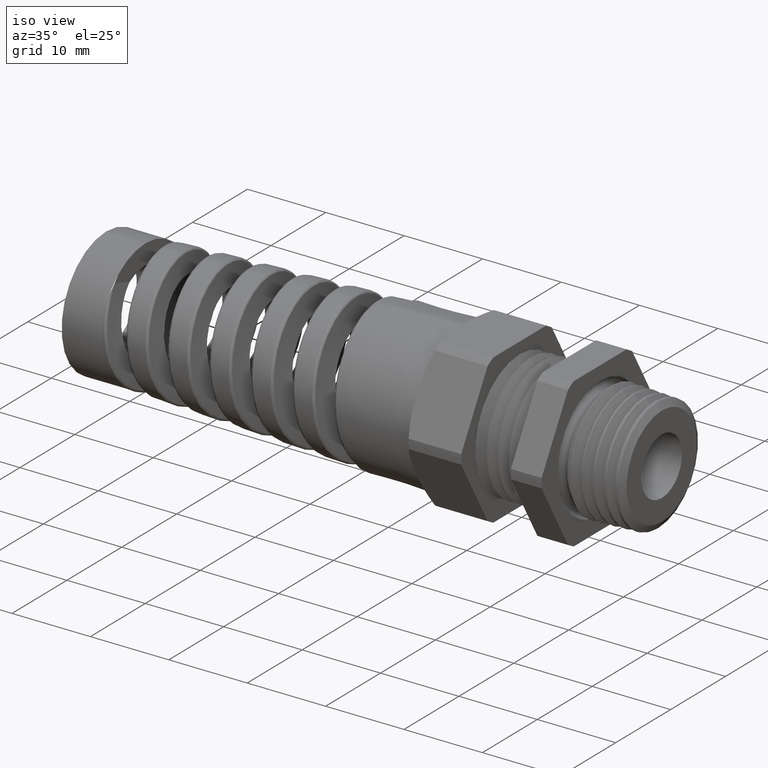
[diagram: clean part render]
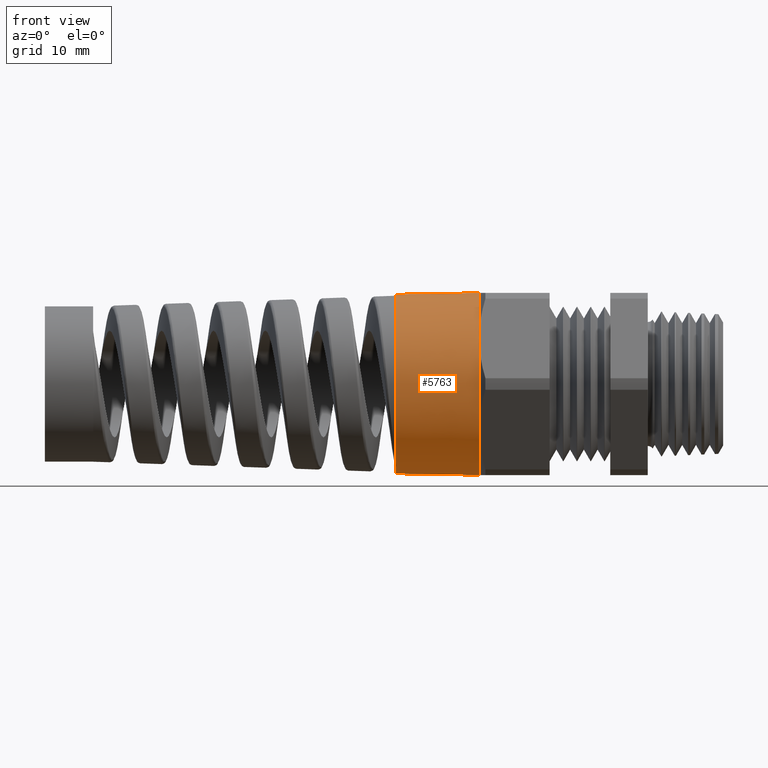
[diagram: tour spotlight — one face highlighted and labeled with its STEP entity id]
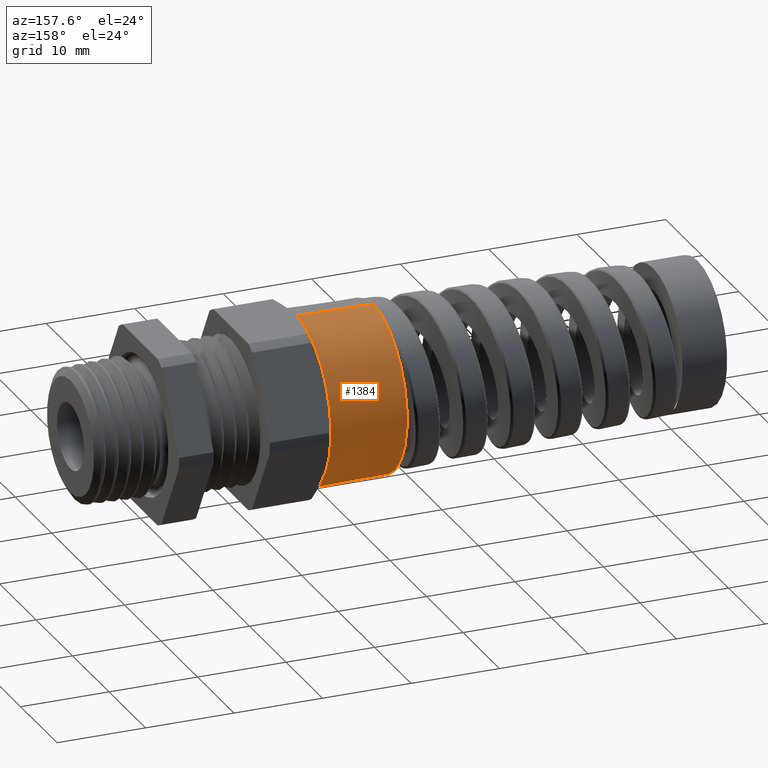
[diagram: tour spotlight — one face highlighted and labeled with its STEP entity id]
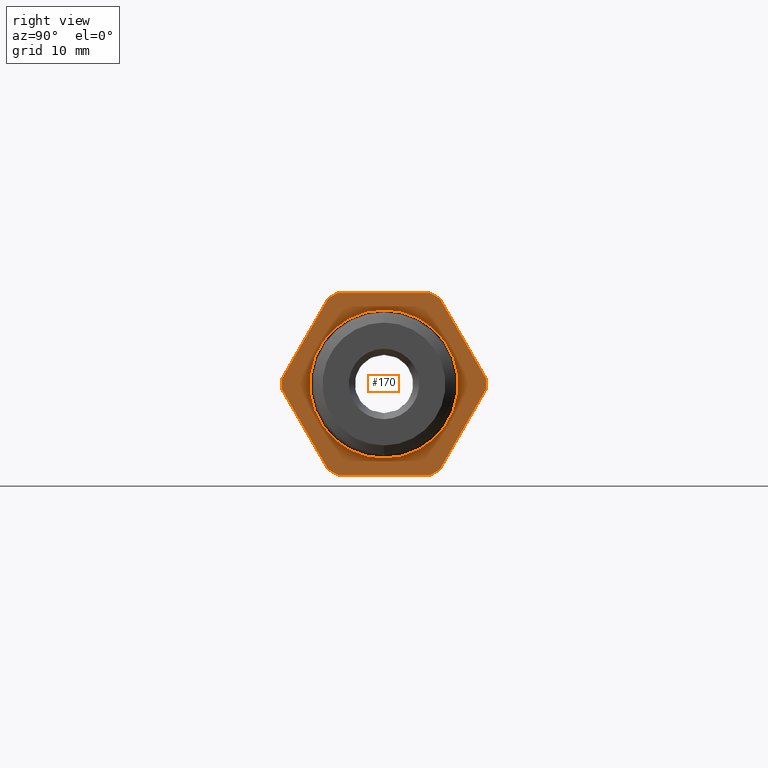
[diagram: tour spotlight — one face highlighted and labeled with its STEP entity id]
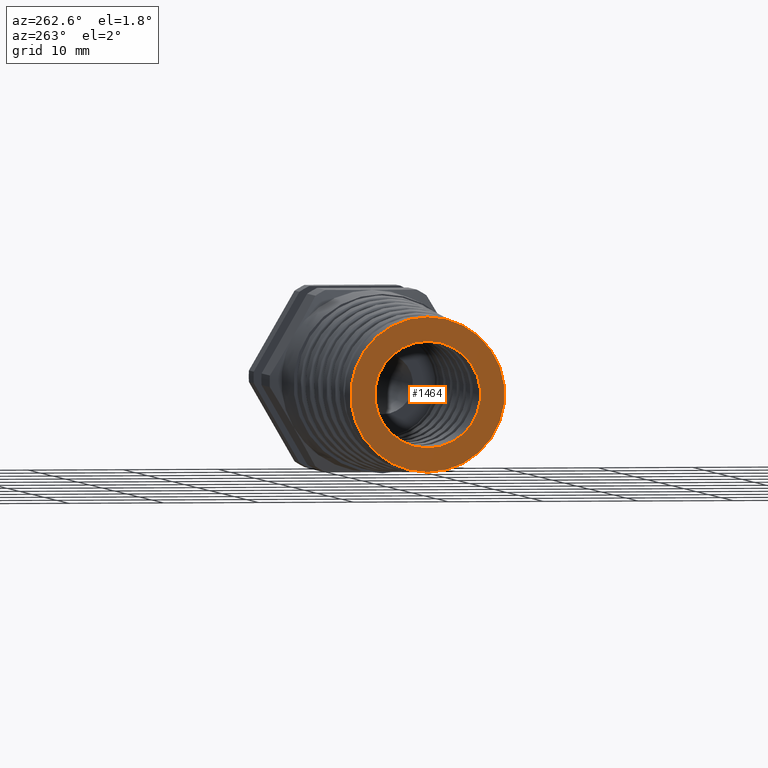
[diagram: tour spotlight — one face highlighted and labeled with its STEP entity id]
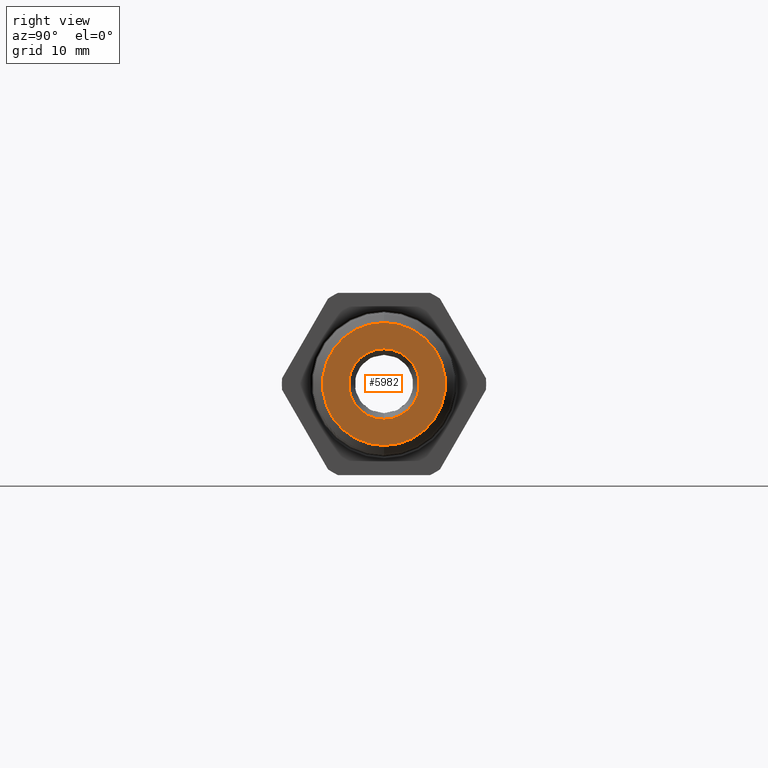
[diagram: tour spotlight — one face highlighted and labeled with its STEP entity id]
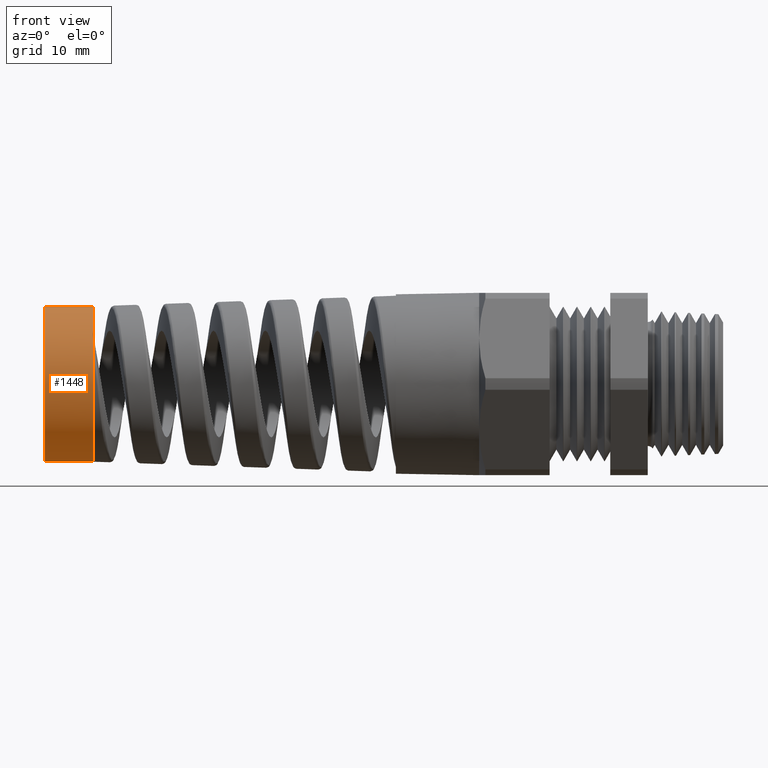
[diagram: tour spotlight — one face highlighted and labeled with its STEP entity id]
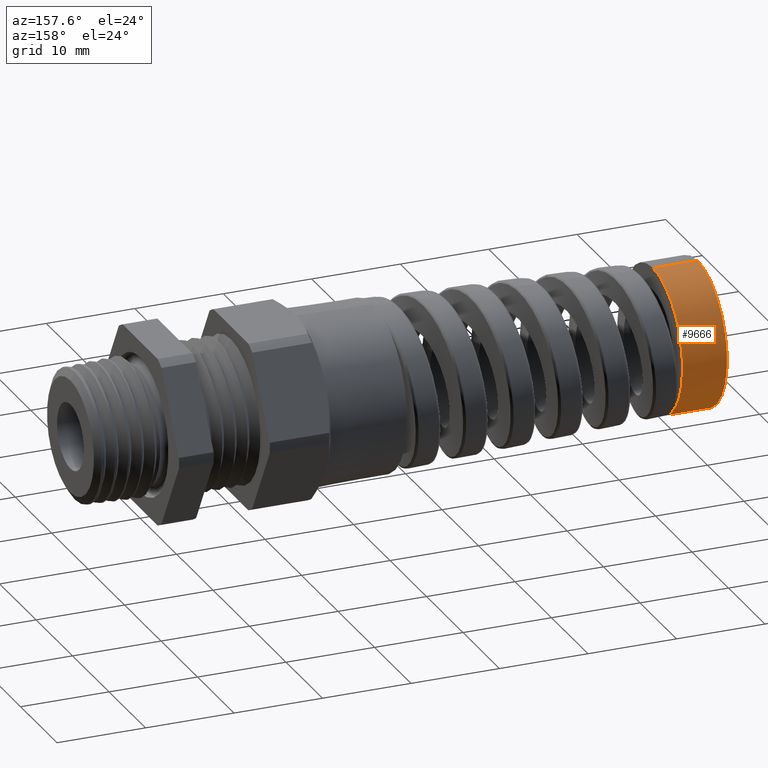
[diagram: tour spotlight — one face highlighted and labeled with its STEP entity id]
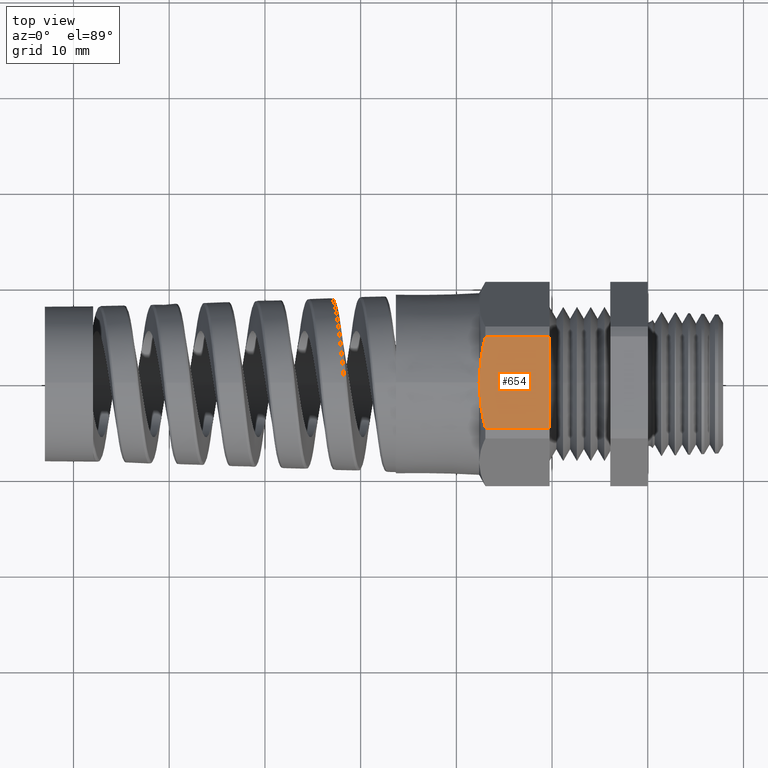
[diagram: tour spotlight — one face highlighted and labeled with its STEP entity id]
A machine part: a face-by-face anatomy tour. The part has 144 B-rep faces; the first image is the clean iso view, then the 8 largest visible faces are spotlighted one at a time (largest first), each with its STEP entity span.

Face 1 — front view, entity #5763. In plain terms, the highlighted conical surface has half-angle 1 deg.
Definition (entity closure, byte-faithful):
#363 = VERTEX_POINT ( 'NONE', #6737 ) ;
#370 = ORIENTED_EDGE ( 'NONE', *, *, #5750, .T. ) ;
#392 = EDGE_CURVE ( 'NONE', #394, #363, #6809, .T. ) ;
#393 = ORIENTED_EDGE ( 'NONE', *, *, #392, .T. ) ;
#394 = VERTEX_POINT ( 'NONE', #6804 ) ;
#504 = ORIENTED_EDGE ( 'NONE', *, *, #506, .T. ) ;
#505 = VERTEX_POINT ( 'NONE', #6850 ) ;
#506 = EDGE_CURVE ( 'NONE', #505, #394, #6849, .T. ) ;
#3986 = CARTESIAN_POINT ( 'NONE',  ( -0.6937499999999999800, 0.0000000000000000000, 0.3749999999999999400 ) ) ;
#4025 = CIRCLE ( 'NONE', #4051, 0.3690261785789666900 ) ;
#4032 = CARTESIAN_POINT ( 'NONE',  ( -1.035990000000000000, 0.0000000000000000000, 0.3690261785789666900 ) ) ;
#4033 = CARTESIAN_POINT ( 'NONE',  ( -1.035990000000000000, -4.555846390392842600E-017, -0.3690261785789666900 ) ) ;
#4034 = DIRECTION ( 'NONE',  ( 0.0000000000000000000, 0.0000000000000000000, 1.000000000000000000 ) ) ;
#4035 = DIRECTION ( 'NONE',  ( -1.000000000000000000, 0.0000000000000000000, 0.0000000000000000000 ) ) ;
#4036 = CARTESIAN_POINT ( 'NONE',  ( -0.6937499999999999800, 0.0000000000000000000, 0.0000000000000000000 ) ) ;
#4037 = AXIS2_PLACEMENT_3D ( 'NONE', #4036, #4035, #4034 ) ;
#4038 = CIRCLE ( 'NONE', #4037, 0.3749999999999999400 ) ;
#4039 = DIRECTION ( 'NONE',  ( 0.9998476951563912700, -2.137303368083796300E-018, -0.01745240643728355000 ) ) ;
#4040 = VECTOR ( 'NONE', #4039, 39.37007874015748100 ) ;
#4041 = CARTESIAN_POINT ( 'NONE',  ( -0.6937499999999999800, -4.592425496802573600E-017, -0.3749999999999999400 ) ) ;
#4042 = LINE ( 'NONE', #4041, #4040 ) ;
#4043 = DIRECTION ( 'NONE',  ( 0.9998476951563912700, 0.0000000000000000000, 0.01745240643728355000 ) ) ;
#4044 = VECTOR ( 'NONE', #4043, 39.37007874015748100 ) ;
#4045 = CARTESIAN_POINT ( 'NONE',  ( -0.6937499999999999800, 0.0000000000000000000, 0.3749999999999999400 ) ) ;
#4046 = LINE ( 'NONE', #4045, #4044 ) ;
#4047 = FACE_OUTER_BOUND ( 'NONE', #5759, .T. ) ;
#4048 = DIRECTION ( 'NONE',  ( 0.0000000000000000000, 0.0000000000000000000, 1.000000000000000000 ) ) ;
#4049 = DIRECTION ( 'NONE',  ( -1.000000000000000000, 0.0000000000000000000, 0.0000000000000000000 ) ) ;
#4050 = CARTESIAN_POINT ( 'NONE',  ( -1.035990000000000000, 0.0000000000000000000, 0.0000000000000000000 ) ) ;
#4051 = AXIS2_PLACEMENT_3D ( 'NONE', #4050, #4049, #4048 ) ;
#4116 = DIRECTION ( 'NONE',  ( 0.0000000000000000000, 0.0000000000000000000, 1.000000000000000000 ) ) ;
#4117 = DIRECTION ( 'NONE',  ( 1.000000000000000000, 0.0000000000000000000, 0.0000000000000000000 ) ) ;
#4118 = CARTESIAN_POINT ( 'NONE',  ( -0.6937499999999999800, 0.0000000000000000000, 0.0000000000000000000 ) ) ;
#4119 = AXIS2_PLACEMENT_3D ( 'NONE', #4118, #4117, #4116 ) ;
#4120 = CONICAL_SURFACE ( 'NONE', #4119, 0.3749999999999999400, 0.01745329251994333400 ) ;
#5744 = ORIENTED_EDGE ( 'NONE', *, *, #5748, .F. ) ;
#5746 = VERTEX_POINT ( 'NONE', #3986 ) ;
#5748 = EDGE_CURVE ( 'NONE', #5753, #5746, #4046, .T. ) ;
#5749 = EDGE_CURVE ( 'NONE', #5751, #505, #4042, .T. ) ;
#5750 = EDGE_CURVE ( 'NONE', #363, #5746, #4038, .T. ) ;
#5751 = VERTEX_POINT ( 'NONE', #4033 ) ;
#5752 = ORIENTED_EDGE ( 'NONE', *, *, #5749, .T. ) ;
#5753 = VERTEX_POINT ( 'NONE', #4032 ) ;
#5756 = ORIENTED_EDGE ( 'NONE', *, *, #5761, .F. ) ;
#5759 = EDGE_LOOP ( 'NONE', ( #5756, #5752, #504, #393, #370, #5744 ) ) ;
#5761 = EDGE_CURVE ( 'NONE', #5751, #5753, #4025, .T. ) ;
#5763 = ADVANCED_FACE ( 'NONE', ( #4047 ), #4120, .T. ) ;
#6737 = CARTESIAN_POINT ( 'NONE',  ( -0.6937499999999999800, -0.3247595264191645600, 0.1874999999999999700 ) ) ;
#6804 = CARTESIAN_POINT ( 'NONE',  ( -0.6937499999999999800, -0.3247595264191645600, -0.1874999999999998900 ) ) ;
#6805 = DIRECTION ( 'NONE',  ( 0.0000000000000000000, 0.0000000000000000000, 1.000000000000000000 ) ) ;
#6806 = DIRECTION ( 'NONE',  ( -1.000000000000000000, 0.0000000000000000000, 0.0000000000000000000 ) ) ;
#6807 = CARTESIAN_POINT ( 'NONE',  ( -0.6937499999999999800, 0.0000000000000000000, 0.0000000000000000000 ) ) ;
#6808 = AXIS2_PLACEMENT_3D ( 'NONE', #6807, #6806, #6805 ) ;
#6809 = CIRCLE ( 'NONE', #6808, 0.3749999999999999400 ) ;
#6845 = DIRECTION ( 'NONE',  ( 0.0000000000000000000, 0.0000000000000000000, 1.000000000000000000 ) ) ;
#6846 = DIRECTION ( 'NONE',  ( -1.000000000000000000, 0.0000000000000000000, 0.0000000000000000000 ) ) ;
#6847 = CARTESIAN_POINT ( 'NONE',  ( -0.6937499999999999800, 0.0000000000000000000, 0.0000000000000000000 ) ) ;
#6848 = AXIS2_PLACEMENT_3D ( 'NONE', #6847, #6846, #6845 ) ;
#6849 = CIRCLE ( 'NONE', #6848, 0.3749999999999999400 ) ;
#6850 = CARTESIAN_POINT ( 'NONE',  ( -0.6937499999999999800, 0.0000000000000000000, -0.3749999999999999400 ) ) ;

Face 2 — auxiliary view, entity #1384. In plain terms, the highlighted conical surface has half-angle 1 deg.
Definition (entity closure, byte-faithful):
#505 = VERTEX_POINT ( 'NONE', #6850 ) ;
#606 = VERTEX_POINT ( 'NONE', #7008 ) ;
#685 = VERTEX_POINT ( 'NONE', #7217 ) ;
#1345 = EDGE_CURVE ( 'NONE', #606, #505, #2489, .T. ) ;
#1367 = EDGE_CURVE ( 'NONE', #5746, #685, #2499, .T. ) ;
#1384 = ADVANCED_FACE ( 'NONE', ( #2621 ), #2618, .T. ) ;
#1385 = EDGE_LOOP ( 'NONE', ( #1386, #1387, #1388, #1389, #1390, #1391 ) ) ;
#1386 = ORIENTED_EDGE ( 'NONE', *, *, #5749, .F. ) ;
#1387 = ORIENTED_EDGE ( 'NONE', *, *, #9595, .F. ) ;
#1388 = ORIENTED_EDGE ( 'NONE', *, *, #5748, .T. ) ;
#1389 = ORIENTED_EDGE ( 'NONE', *, *, #1367, .T. ) ;
#1390 = ORIENTED_EDGE ( 'NONE', *, *, #10488, .T. ) ;
#1391 = ORIENTED_EDGE ( 'NONE', *, *, #1345, .T. ) ;
#2482 = DIRECTION ( 'NONE',  ( 0.0000000000000000000, 0.0000000000000000000, 1.000000000000000000 ) ) ;
#2483 = DIRECTION ( 'NONE',  ( -1.000000000000000000, 0.0000000000000000000, 0.0000000000000000000 ) ) ;
#2484 = CARTESIAN_POINT ( 'NONE',  ( -0.6937499999999999800, 0.0000000000000000000, 0.0000000000000000000 ) ) ;
#2485 = AXIS2_PLACEMENT_3D ( 'NONE', #2484, #2483, #2482 ) ;
#2489 = CIRCLE ( 'NONE', #2485, 0.3749999999999999400 ) ;
#2496 = DIRECTION ( 'NONE',  ( 0.0000000000000000000, 0.0000000000000000000, 1.000000000000000000 ) ) ;
#2497 = DIRECTION ( 'NONE',  ( -1.000000000000000000, 0.0000000000000000000, 0.0000000000000000000 ) ) ;
#2498 = AXIS2_PLACEMENT_3D ( 'NONE', #2504, #2497, #2496 ) ;
#2499 = CIRCLE ( 'NONE', #2498, 0.3749999999999999400 ) ;
#2504 = CARTESIAN_POINT ( 'NONE',  ( -0.6937499999999999800, 0.0000000000000000000, 0.0000000000000000000 ) ) ;
#2617 = CARTESIAN_POINT ( 'NONE',  ( -0.6937499999999999800, 0.0000000000000000000, 0.0000000000000000000 ) ) ;
#2618 = CONICAL_SURFACE ( 'NONE', #2663, 0.3749999999999999400, 0.01745329251994333400 ) ;
#2619 = DIRECTION ( 'NONE',  ( 1.000000000000000000, 0.0000000000000000000, 0.0000000000000000000 ) ) ;
#2621 = FACE_OUTER_BOUND ( 'NONE', #1385, .T. ) ;
#2662 = DIRECTION ( 'NONE',  ( 0.0000000000000000000, 0.0000000000000000000, 1.000000000000000000 ) ) ;
#2663 = AXIS2_PLACEMENT_3D ( 'NONE', #2617, #2619, #2662 ) ;
#3986 = CARTESIAN_POINT ( 'NONE',  ( -0.6937499999999999800, 0.0000000000000000000, 0.3749999999999999400 ) ) ;
#4032 = CARTESIAN_POINT ( 'NONE',  ( -1.035990000000000000, 0.0000000000000000000, 0.3690261785789666900 ) ) ;
#4033 = CARTESIAN_POINT ( 'NONE',  ( -1.035990000000000000, -4.555846390392842600E-017, -0.3690261785789666900 ) ) ;
#4039 = DIRECTION ( 'NONE',  ( 0.9998476951563912700, -2.137303368083796300E-018, -0.01745240643728355000 ) ) ;
#4040 = VECTOR ( 'NONE', #4039, 39.37007874015748100 ) ;
#4041 = CARTESIAN_POINT ( 'NONE',  ( -0.6937499999999999800, -4.592425496802573600E-017, -0.3749999999999999400 ) ) ;
#4042 = LINE ( 'NONE', #4041, #4040 ) ;
#4043 = DIRECTION ( 'NONE',  ( 0.9998476951563912700, 0.0000000000000000000, 0.01745240643728355000 ) ) ;
#4044 = VECTOR ( 'NONE', #4043, 39.37007874015748100 ) ;
#4045 = CARTESIAN_POINT ( 'NONE',  ( -0.6937499999999999800, 0.0000000000000000000, 0.3749999999999999400 ) ) ;
#4046 = LINE ( 'NONE', #4045, #4044 ) ;
#4781 = CIRCLE ( 'NONE', #4847, 0.3690261785789666900 ) ;
#4786 = CARTESIAN_POINT ( 'NONE',  ( -1.035990000000000000, 0.0000000000000000000, 0.0000000000000000000 ) ) ;
#4845 = DIRECTION ( 'NONE',  ( 0.0000000000000000000, 0.0000000000000000000, 1.000000000000000000 ) ) ;
#4846 = DIRECTION ( 'NONE',  ( -1.000000000000000000, 0.0000000000000000000, 0.0000000000000000000 ) ) ;
#4847 = AXIS2_PLACEMENT_3D ( 'NONE', #4786, #4846, #4845 ) ;
#5532 = CARTESIAN_POINT ( 'NONE',  ( -0.6937499999999999800, 0.0000000000000000000, 0.0000000000000000000 ) ) ;
#5595 = DIRECTION ( 'NONE',  ( 0.0000000000000000000, 0.0000000000000000000, 1.000000000000000000 ) ) ;
#5596 = DIRECTION ( 'NONE',  ( -1.000000000000000000, 0.0000000000000000000, 0.0000000000000000000 ) ) ;
#5597 = AXIS2_PLACEMENT_3D ( 'NONE', #5532, #5596, #5595 ) ;
#5598 = CIRCLE ( 'NONE', #5597, 0.3749999999999999400 ) ;
#5746 = VERTEX_POINT ( 'NONE', #3986 ) ;
#5748 = EDGE_CURVE ( 'NONE', #5753, #5746, #4046, .T. ) ;
#5749 = EDGE_CURVE ( 'NONE', #5751, #505, #4042, .T. ) ;
#5751 = VERTEX_POINT ( 'NONE', #4033 ) ;
#5753 = VERTEX_POINT ( 'NONE', #4032 ) ;
#6850 = CARTESIAN_POINT ( 'NONE',  ( -0.6937499999999999800, 0.0000000000000000000, -0.3749999999999999400 ) ) ;
#7008 = CARTESIAN_POINT ( 'NONE',  ( -0.6937499999999999800, 0.3247595264191644500, -0.1875000000000000300 ) ) ;
#7217 = CARTESIAN_POINT ( 'NONE',  ( -0.6937499999999999800, 0.3247595264191644500, 0.1875000000000000300 ) ) ;
#9595 = EDGE_CURVE ( 'NONE', #5753, #5751, #4781, .T. ) ;
#10488 = EDGE_CURVE ( 'NONE', #685, #606, #5598, .T. ) ;

Face 3 — right view, entity #170. In plain terms, the highlighted planar face has unit normal (-1, 0, 0).
Definition (entity closure, byte-faithful):
#170 = ADVANCED_FACE ( 'NONE', ( #6447, #6446 ), #6445, .F. ) ;
#171 = EDGE_LOOP ( 'NONE', ( #179, #200, #6156, #6154, #5827, #6011, #6016, #6012, #5994, #6005, #5996, #5998 ) ) ;
#173 = EDGE_CURVE ( 'NONE', #191, #188, #6436, .T. ) ;
#176 = EDGE_CURVE ( 'NONE', #193, #188, #6425, .T. ) ;
#179 = ORIENTED_EDGE ( 'NONE', *, *, #176, .T. ) ;
#188 = VERTEX_POINT ( 'NONE', #6465 ) ;
#191 = VERTEX_POINT ( 'NONE', #6458 ) ;
#193 = VERTEX_POINT ( 'NONE', #6453 ) ;
#200 = ORIENTED_EDGE ( 'NONE', *, *, #173, .F. ) ;
#3880 = DIRECTION ( 'NONE',  ( 0.0000000000000000000, 0.0000000000000000000, 1.000000000000000000 ) ) ;
#3881 = DIRECTION ( 'NONE',  ( 1.000000000000000000, 0.0000000000000000000, 0.0000000000000000000 ) ) ;
#3882 = CARTESIAN_POINT ( 'NONE',  ( 0.0000000000000000000, 0.0000000000000000000, 0.0000000000000000000 ) ) ;
#3883 = AXIS2_PLACEMENT_3D ( 'NONE', #3882, #3881, #3880 ) ;
#3884 = CIRCLE ( 'NONE', #3883, 0.3049999999999998300 ) ;
#3890 = CARTESIAN_POINT ( 'NONE',  ( 0.0000000000000000000, 3.735172737399425200E-017, 0.3049999999999998300 ) ) ;
#3900 = CARTESIAN_POINT ( 'NONE',  ( 0.0000000000000000000, 0.0000000000000000000, -0.3049999999999998300 ) ) ;
#4251 = CARTESIAN_POINT ( 'NONE',  ( 0.0000000000000000000, 0.1891428031937775500, -0.3749999999999999400 ) ) ;
#4252 = CARTESIAN_POINT ( 'NONE',  ( 0.0000000000000000000, 0.2301881248222757100, -0.3513024725088117500 ) ) ;
#4417 = CARTESIAN_POINT ( 'NONE',  ( 0.0000000000000000000, 0.1891428031937775500, 0.3749999999999999400 ) ) ;
#4450 = LINE ( 'NONE', #4514, #4513 ) ;
#4451 = CARTESIAN_POINT ( 'NONE',  ( 0.0000000000000000000, -0.2301881248222755500, 0.3513024725088118000 ) ) ;
#4452 = CARTESIAN_POINT ( 'NONE',  ( 0.0000000000000000000, -0.4193309280160532100, 0.02369752749118811000 ) ) ;
#4464 = DIRECTION ( 'NONE',  ( 0.0000000000000000000, 0.0000000000000000000, 1.000000000000000000 ) ) ;
#4465 = DIRECTION ( 'NONE',  ( -1.000000000000000000, 0.0000000000000000000, 0.0000000000000000000 ) ) ;
#4466 = CARTESIAN_POINT ( 'NONE',  ( 0.0000000000000000000, 0.0000000000000000000, 0.0000000000000000000 ) ) ;
#4467 = AXIS2_PLACEMENT_3D ( 'NONE', #4466, #4465, #4464 ) ;
#4468 = CIRCLE ( 'NONE', #4467, 0.4200000000000000400 ) ;
#4469 = DIRECTION ( 'NONE',  ( 0.0000000000000000000, -0.5000000000000000000, -0.8660254037844386000 ) ) ;
#4470 = VECTOR ( 'NONE', #4469, 39.37007874015748900 ) ;
#4471 = CARTESIAN_POINT ( 'NONE',  ( 0.0000000000000000000, -0.2301881248222756000, 0.3513024725088117500 ) ) ;
#4472 = LINE ( 'NONE', #4471, #4470 ) ;
#4473 = DIRECTION ( 'NONE',  ( 0.0000000000000000000, 0.0000000000000000000, 1.000000000000000000 ) ) ;
#4474 = DIRECTION ( 'NONE',  ( -1.000000000000000000, 0.0000000000000000000, 0.0000000000000000000 ) ) ;
#4475 = CARTESIAN_POINT ( 'NONE',  ( 0.0000000000000000000, 0.0000000000000000000, 0.0000000000000000000 ) ) ;
#4476 = AXIS2_PLACEMENT_3D ( 'NONE', #4475, #4474, #4473 ) ;
#4477 = CIRCLE ( 'NONE', #4476, 0.4200000000000000400 ) ;
#4478 = CARTESIAN_POINT ( 'NONE',  ( 0.0000000000000000000, -0.1891428031937775500, 0.3749999999999999400 ) ) ;
#4479 = DIRECTION ( 'NONE',  ( 0.0000000000000000000, -1.000000000000000000, 0.0000000000000000000 ) ) ;
#4480 = VECTOR ( 'NONE', #4479, 39.37007874015748100 ) ;
#4481 = CARTESIAN_POINT ( 'NONE',  ( 0.0000000000000000000, 0.1891428031937775500, 0.3749999999999999400 ) ) ;
#4482 = LINE ( 'NONE', #4481, #4480 ) ;
#4489 = DIRECTION ( 'NONE',  ( 0.0000000000000000000, 0.0000000000000000000, 1.000000000000000000 ) ) ;
#4490 = DIRECTION ( 'NONE',  ( 1.000000000000000000, 0.0000000000000000000, 0.0000000000000000000 ) ) ;
#4491 = CARTESIAN_POINT ( 'NONE',  ( 0.0000000000000000000, 0.0000000000000000000, 0.0000000000000000000 ) ) ;
#4492 = AXIS2_PLACEMENT_3D ( 'NONE', #4491, #4490, #4489 ) ;
#4497 = CIRCLE ( 'NONE', #4492, 0.3049999999999998300 ) ;
#4500 = CARTESIAN_POINT ( 'NONE',  ( 0.0000000000000000000, 0.2301881248222757400, 0.3513024725088116900 ) ) ;
#4501 = DIRECTION ( 'NONE',  ( 0.0000000000000000000, -0.5000000000000001100, 0.8660254037844386000 ) ) ;
#4502 = VECTOR ( 'NONE', #4501, 39.37007874015748100 ) ;
#4503 = CARTESIAN_POINT ( 'NONE',  ( 0.0000000000000000000, 0.4193309280160532100, 0.02369752749118835000 ) ) ;
#4504 = LINE ( 'NONE', #4503, #4502 ) ;
#4505 = CARTESIAN_POINT ( 'NONE',  ( 0.0000000000000000000, 0.4193309280160532100, 0.02369752749118839500 ) ) ;
#4506 = DIRECTION ( 'NONE',  ( 0.0000000000000000000, 0.0000000000000000000, 1.000000000000000000 ) ) ;
#4507 = DIRECTION ( 'NONE',  ( -1.000000000000000000, 0.0000000000000000000, 0.0000000000000000000 ) ) ;
#4508 = CARTESIAN_POINT ( 'NONE',  ( 0.0000000000000000000, 0.0000000000000000000, 0.0000000000000000000 ) ) ;
#4509 = AXIS2_PLACEMENT_3D ( 'NONE', #4508, #4507, #4506 ) ;
#4510 = CIRCLE ( 'NONE', #4509, 0.4200000000000000400 ) ;
#4511 = CARTESIAN_POINT ( 'NONE',  ( 0.0000000000000000000, 0.4193309280160532600, -0.02369752749118821500 ) ) ;
#4512 = DIRECTION ( 'NONE',  ( 0.0000000000000000000, 0.5000000000000001100, 0.8660254037844386000 ) ) ;
#4513 = VECTOR ( 'NONE', #4512, 39.37007874015748100 ) ;
#4514 = CARTESIAN_POINT ( 'NONE',  ( 0.0000000000000000000, 0.2301881248222757100, -0.3513024725088117500 ) ) ;
#4541 = DIRECTION ( 'NONE',  ( 0.0000000000000000000, 0.0000000000000000000, 1.000000000000000000 ) ) ;
#4542 = DIRECTION ( 'NONE',  ( -1.000000000000000000, 0.0000000000000000000, 0.0000000000000000000 ) ) ;
#4543 = AXIS2_PLACEMENT_3D ( 'NONE', #4549, #4542, #4541 ) ;
#4544 = CIRCLE ( 'NONE', #4543, 0.4200000000000000400 ) ;
#4549 = CARTESIAN_POINT ( 'NONE',  ( 0.0000000000000000000, 0.0000000000000000000, 0.0000000000000000000 ) ) ;
#4710 = DIRECTION ( 'NONE',  ( 0.0000000000000000000, 0.0000000000000000000, 1.000000000000000000 ) ) ;
#4711 = DIRECTION ( 'NONE',  ( -1.000000000000000000, 0.0000000000000000000, 0.0000000000000000000 ) ) ;
#4712 = CARTESIAN_POINT ( 'NONE',  ( 0.0000000000000000000, 0.0000000000000000000, 0.0000000000000000000 ) ) ;
#4713 = AXIS2_PLACEMENT_3D ( 'NONE', #4712, #4711, #4710 ) ;
#4714 = CIRCLE ( 'NONE', #4713, 0.4200000000000000400 ) ;
#4739 = DIRECTION ( 'NONE',  ( 0.0000000000000000000, 1.000000000000000000, 0.0000000000000000000 ) ) ;
#4740 = VECTOR ( 'NONE', #4739, 39.37007874015748100 ) ;
#4741 = CARTESIAN_POINT ( 'NONE',  ( 0.0000000000000000000, -0.1891428031937775500, -0.3749999999999999400 ) ) ;
#4742 = LINE ( 'NONE', #4741, #4740 ) ;
#5716 = VERTEX_POINT ( 'NONE', #3890 ) ;
#5718 = EDGE_CURVE ( 'NONE', #5716, #5721, #3884, .T. ) ;
#5721 = VERTEX_POINT ( 'NONE', #3900 ) ;
#5827 = ORIENTED_EDGE ( 'NONE', *, *, #6009, .T. ) ;
#5828 = VERTEX_POINT ( 'NONE', #4252 ) ;
#5831 = VERTEX_POINT ( 'NONE', #4251 ) ;
#5993 = VERTEX_POINT ( 'NONE', #4417 ) ;
#5994 = ORIENTED_EDGE ( 'NONE', *, *, #5995, .T. ) ;
#5995 = EDGE_CURVE ( 'NONE', #5993, #5997, #4482, .T. ) ;
#5996 = ORIENTED_EDGE ( 'NONE', *, *, #6000, .T. ) ;
#5997 = VERTEX_POINT ( 'NONE', #4478 ) ;
#5998 = ORIENTED_EDGE ( 'NONE', *, *, #6001, .F. ) ;
#5999 = EDGE_CURVE ( 'NONE', #6007, #5997, #4477, .T. ) ;
#6000 = EDGE_CURVE ( 'NONE', #6007, #6006, #4472, .T. ) ;
#6001 = EDGE_CURVE ( 'NONE', #193, #6006, #4468, .T. ) ;
#6005 = ORIENTED_EDGE ( 'NONE', *, *, #5999, .F. ) ;
#6006 = VERTEX_POINT ( 'NONE', #4452 ) ;
#6007 = VERTEX_POINT ( 'NONE', #4451 ) ;
#6009 = EDGE_CURVE ( 'NONE', #5828, #6010, #4450, .T. ) ;
#6010 = VERTEX_POINT ( 'NONE', #4511 ) ;
#6011 = ORIENTED_EDGE ( 'NONE', *, *, #6013, .F. ) ;
#6012 = ORIENTED_EDGE ( 'NONE', *, *, #6031, .F. ) ;
#6013 = EDGE_CURVE ( 'NONE', #6014, #6010, #4510, .T. ) ;
#6014 = VERTEX_POINT ( 'NONE', #4505 ) ;
#6015 = EDGE_CURVE ( 'NONE', #6014, #6018, #4504, .T. ) ;
#6016 = ORIENTED_EDGE ( 'NONE', *, *, #6015, .T. ) ;
#6018 = VERTEX_POINT ( 'NONE', #4500 ) ;
#6019 = EDGE_LOOP ( 'NONE', ( #6020, #6021 ) ) ;
#6020 = ORIENTED_EDGE ( 'NONE', *, *, #6023, .F. ) ;
#6021 = ORIENTED_EDGE ( 'NONE', *, *, #5718, .F. ) ;
#6023 = EDGE_CURVE ( 'NONE', #5721, #5716, #4497, .T. ) ;
#6031 = EDGE_CURVE ( 'NONE', #5993, #6018, #4544, .T. ) ;
#6154 = ORIENTED_EDGE ( 'NONE', *, *, #6155, .F. ) ;
#6155 = EDGE_CURVE ( 'NONE', #5828, #5831, #4714, .T. ) ;
#6156 = ORIENTED_EDGE ( 'NONE', *, *, #6162, .T. ) ;
#6162 = EDGE_CURVE ( 'NONE', #191, #5831, #4742, .T. ) ;
#6422 = DIRECTION ( 'NONE',  ( 0.0000000000000000000, 0.4999999999999997200, -0.8660254037844388200 ) ) ;
#6423 = VECTOR ( 'NONE', #6422, 39.37007874015748100 ) ;
#6424 = CARTESIAN_POINT ( 'NONE',  ( 0.0000000000000000000, -0.4193309280160532100, -0.02369752749118811000 ) ) ;
#6425 = LINE ( 'NONE', #6424, #6423 ) ;
#6432 = DIRECTION ( 'NONE',  ( 0.0000000000000000000, 0.0000000000000000000, 1.000000000000000000 ) ) ;
#6433 = DIRECTION ( 'NONE',  ( -1.000000000000000000, 0.0000000000000000000, 0.0000000000000000000 ) ) ;
#6434 = CARTESIAN_POINT ( 'NONE',  ( 0.0000000000000000000, 0.0000000000000000000, 0.0000000000000000000 ) ) ;
#6435 = AXIS2_PLACEMENT_3D ( 'NONE', #6434, #6433, #6432 ) ;
#6436 = CIRCLE ( 'NONE', #6435, 0.4200000000000000400 ) ;
#6441 = DIRECTION ( 'NONE',  ( 0.0000000000000000000, 0.0000000000000000000, 1.000000000000000000 ) ) ;
#6442 = DIRECTION ( 'NONE',  ( -1.000000000000000000, 0.0000000000000000000, 0.0000000000000000000 ) ) ;
#6443 = CARTESIAN_POINT ( 'NONE',  ( 0.0000000000000000000, 0.4200000000000000400, 0.0000000000000000000 ) ) ;
#6444 = AXIS2_PLACEMENT_3D ( 'NONE', #6443, #6442, #6441 ) ;
#6445 = PLANE ( 'NONE',  #6444 ) ;
#6446 = FACE_BOUND ( 'NONE', #6019, .T. ) ;
#6447 = FACE_OUTER_BOUND ( 'NONE', #171, .T. ) ;
#6453 = CARTESIAN_POINT ( 'NONE',  ( 0.0000000000000000000, -0.4193309280160532100, -0.02369752749118814500 ) ) ;
#6458 = CARTESIAN_POINT ( 'NONE',  ( 0.0000000000000000000, -0.1891428031937775800, -0.3749999999999998900 ) ) ;
#6465 = CARTESIAN_POINT ( 'NONE',  ( 0.0000000000000000000, -0.2301881248222757400, -0.3513024725088117500 ) ) ;

Face 4 — auxiliary view, entity #1464. In plain terms, the highlighted planar face has unit normal (-1, 0, 0).
Definition (entity closure, byte-faithful):
#1063 = ORIENTED_EDGE ( 'NONE', *, *, #9638, .T. ) ;
#1073 = ORIENTED_EDGE ( 'NONE', *, *, #1075, .T. ) ;
#1075 = EDGE_CURVE ( 'NONE', #9642, #9641, #2078, .T. ) ;
#1373 = ORIENTED_EDGE ( 'NONE', *, *, #9810, .F. ) ;
#1447 = ORIENTED_EDGE ( 'NONE', *, *, #1467, .F. ) ;
#1464 = ADVANCED_FACE ( 'NONE', ( #3733, #3732 ), #3729, .T. ) ;
#1465 = EDGE_LOOP ( 'NONE', ( #1073, #1063 ) ) ;
#1467 = EDGE_CURVE ( 'NONE', #9711, #9712, #3776, .T. ) ;
#2074 = DIRECTION ( 'NONE',  ( 0.0000000000000000000, 0.0000000000000000000, 1.000000000000000000 ) ) ;
#2075 = DIRECTION ( 'NONE',  ( -1.000000000000000000, 0.0000000000000000000, 0.0000000000000000000 ) ) ;
#2076 = CARTESIAN_POINT ( 'NONE',  ( -2.480000000000000000, 0.0000000000000000000, 0.0000000000000000000 ) ) ;
#2077 = AXIS2_PLACEMENT_3D ( 'NONE', #2076, #2075, #2074 ) ;
#2078 = CIRCLE ( 'NONE', #2077, 0.3195341310835432800 ) ;
#3727 = CARTESIAN_POINT ( 'NONE',  ( -2.480000000000000000, 0.0000000000000000000, 0.0000000000000000000 ) ) ;
#3728 = AXIS2_PLACEMENT_3D ( 'NONE', #3727, #3778, #3777 ) ;
#3729 = PLANE ( 'NONE',  #3728 ) ;
#3730 = CARTESIAN_POINT ( 'NONE',  ( -2.480000000000000000, 0.0000000000000000000, 0.0000000000000000000 ) ) ;
#3732 = FACE_BOUND ( 'NONE', #9484, .T. ) ;
#3733 = FACE_OUTER_BOUND ( 'NONE', #1465, .T. ) ;
#3773 = DIRECTION ( 'NONE',  ( 0.0000000000000000000, 0.0000000000000000000, 1.000000000000000000 ) ) ;
#3774 = DIRECTION ( 'NONE',  ( -1.000000000000000000, 0.0000000000000000000, 0.0000000000000000000 ) ) ;
#3775 = AXIS2_PLACEMENT_3D ( 'NONE', #3730, #3774, #3773 ) ;
#3776 = CIRCLE ( 'NONE', #3775, 0.2195341310825380300 ) ;
#3777 = DIRECTION ( 'NONE',  ( 0.0000000000000000000, 0.0000000000000000000, 1.000000000000000000 ) ) ;
#3778 = DIRECTION ( 'NONE',  ( -1.000000000000000000, 0.0000000000000000000, 0.0000000000000000000 ) ) ;
#4885 = CIRCLE ( 'NONE', #4927, 0.3195341310835432800 ) ;
#4922 = CARTESIAN_POINT ( 'NONE',  ( -2.480000000000000000, 0.0000000000000000000, -0.3195341310835432800 ) ) ;
#4923 = CARTESIAN_POINT ( 'NONE',  ( -2.480000000000000000, 3.913164508497920300E-017, 0.3195341310835432800 ) ) ;
#4924 = DIRECTION ( 'NONE',  ( 0.0000000000000000000, 0.0000000000000000000, 1.000000000000000000 ) ) ;
#4925 = DIRECTION ( 'NONE',  ( -1.000000000000000000, 0.0000000000000000000, 0.0000000000000000000 ) ) ;
#4926 = CARTESIAN_POINT ( 'NONE',  ( -2.480000000000000000, 0.0000000000000000000, 0.0000000000000000000 ) ) ;
#4927 = AXIS2_PLACEMENT_3D ( 'NONE', #4926, #4925, #4924 ) ;
#5159 = CARTESIAN_POINT ( 'NONE',  ( -2.480000000000000000, 0.0000000000000000000, -0.2195341310825380300 ) ) ;
#5160 = CARTESIAN_POINT ( 'NONE',  ( -2.480000000000000000, 2.688517709344438000E-017, 0.2195341310825380300 ) ) ;
#5191 = DIRECTION ( 'NONE',  ( 0.0000000000000000000, 0.0000000000000000000, 1.000000000000000000 ) ) ;
#5192 = DIRECTION ( 'NONE',  ( -1.000000000000000000, 0.0000000000000000000, 0.0000000000000000000 ) ) ;
#5193 = AXIS2_PLACEMENT_3D ( 'NONE', #5199, #5192, #5191 ) ;
#5194 = CIRCLE ( 'NONE', #5193, 0.2195341310825380300 ) ;
#5199 = CARTESIAN_POINT ( 'NONE',  ( -2.480000000000000000, 0.0000000000000000000, 0.0000000000000000000 ) ) ;
#9484 = EDGE_LOOP ( 'NONE', ( #1373, #1447 ) ) ;
#9638 = EDGE_CURVE ( 'NONE', #9641, #9642, #4885, .T. ) ;
#9641 = VERTEX_POINT ( 'NONE', #4923 ) ;
#9642 = VERTEX_POINT ( 'NONE', #4922 ) ;
#9711 = VERTEX_POINT ( 'NONE', #5160 ) ;
#9712 = VERTEX_POINT ( 'NONE', #5159 ) ;
#9810 = EDGE_CURVE ( 'NONE', #9712, #9711, #5194, .T. ) ;

Face 5 — right view, entity #5982. In plain terms, the highlighted planar face has unit normal (-1, 0, 0).
Definition (entity closure, byte-faithful):
#156 = VERTEX_POINT ( 'NONE', #6393 ) ;
#165 = EDGE_CURVE ( 'NONE', #156, #9607, #6392, .T. ) ;
#3898 = CARTESIAN_POINT ( 'NONE',  ( 0.3099999999999998300, 0.0000000000000000000, 0.2528497280161801600 ) ) ;
#3899 = CARTESIAN_POINT ( 'NONE',  ( 0.3099999999999998300, 3.307673725457534100E-017, -0.2528497280161801600 ) ) ;
#3972 = DIRECTION ( 'NONE',  ( 0.0000000000000000000, 0.0000000000000000000, 1.000000000000000000 ) ) ;
#3973 = DIRECTION ( 'NONE',  ( -1.000000000000000000, 0.0000000000000000000, 0.0000000000000000000 ) ) ;
#3974 = CARTESIAN_POINT ( 'NONE',  ( 0.3099999999999998300, 0.0000000000000000000, 0.0000000000000000000 ) ) ;
#3975 = AXIS2_PLACEMENT_3D ( 'NONE', #3974, #3973, #3972 ) ;
#3976 = CIRCLE ( 'NONE', #3975, 0.2528497280161801600 ) ;
#4348 = AXIS2_PLACEMENT_3D ( 'NONE', #4416, #4415, #4414 ) ;
#4349 = CIRCLE ( 'NONE', #4348, 0.1449246992247354700 ) ;
#4414 = DIRECTION ( 'NONE',  ( 0.0000000000000000000, 0.0000000000000000000, 1.000000000000000000 ) ) ;
#4415 = DIRECTION ( 'NONE',  ( -1.000000000000000000, 0.0000000000000000000, 0.0000000000000000000 ) ) ;
#4416 = CARTESIAN_POINT ( 'NONE',  ( 0.3099999999999998300, 0.0000000000000000000, 0.0000000000000000000 ) ) ;
#4423 = DIRECTION ( 'NONE',  ( 0.0000000000000000000, 0.0000000000000000000, 1.000000000000000000 ) ) ;
#4424 = DIRECTION ( 'NONE',  ( -1.000000000000000000, 0.0000000000000000000, 0.0000000000000000000 ) ) ;
#4425 = CARTESIAN_POINT ( 'NONE',  ( 0.3099999999999998300, 0.2864651076983612000, 0.0000000000000000000 ) ) ;
#4426 = AXIS2_PLACEMENT_3D ( 'NONE', #4425, #4424, #4423 ) ;
#4427 = PLANE ( 'NONE',  #4426 ) ;
#4428 = FACE_OUTER_BOUND ( 'NONE', #5960, .T. ) ;
#4429 = FACE_BOUND ( 'NONE', #5813, .T. ) ;
#4453 = DIRECTION ( 'NONE',  ( 0.0000000000000000000, 0.0000000000000000000, 1.000000000000000000 ) ) ;
#4454 = DIRECTION ( 'NONE',  ( -1.000000000000000000, 0.0000000000000000000, 0.0000000000000000000 ) ) ;
#4455 = AXIS2_PLACEMENT_3D ( 'NONE', #4461, #4454, #4453 ) ;
#4456 = CIRCLE ( 'NONE', #4455, 0.2528497280161801600 ) ;
#4461 = CARTESIAN_POINT ( 'NONE',  ( 0.3099999999999998300, 0.0000000000000000000, 0.0000000000000000000 ) ) ;
#4839 = CARTESIAN_POINT ( 'NONE',  ( 0.3099999999999998300, 1.774815690229652000E-017, 0.1449246992247354700 ) ) ;
#5725 = VERTEX_POINT ( 'NONE', #3899 ) ;
#5726 = VERTEX_POINT ( 'NONE', #3898 ) ;
#5733 = EDGE_CURVE ( 'NONE', #5726, #5725, #3976, .T. ) ;
#5776 = ORIENTED_EDGE ( 'NONE', *, *, #5959, .T. ) ;
#5779 = ORIENTED_EDGE ( 'NONE', *, *, #165, .T. ) ;
#5813 = EDGE_LOOP ( 'NONE', ( #5779, #5776 ) ) ;
#5959 = EDGE_CURVE ( 'NONE', #9607, #156, #4349, .T. ) ;
#5960 = EDGE_LOOP ( 'NONE', ( #6004, #6008 ) ) ;
#5982 = ADVANCED_FACE ( 'NONE', ( #4429, #4428 ), #4427, .F. ) ;
#6003 = EDGE_CURVE ( 'NONE', #5725, #5726, #4456, .T. ) ;
#6004 = ORIENTED_EDGE ( 'NONE', *, *, #5733, .F. ) ;
#6008 = ORIENTED_EDGE ( 'NONE', *, *, #6003, .F. ) ;
#6388 = DIRECTION ( 'NONE',  ( 0.0000000000000000000, 0.0000000000000000000, 1.000000000000000000 ) ) ;
#6389 = DIRECTION ( 'NONE',  ( -1.000000000000000000, 0.0000000000000000000, 0.0000000000000000000 ) ) ;
#6390 = CARTESIAN_POINT ( 'NONE',  ( 0.3099999999999998300, 0.0000000000000000000, 0.0000000000000000000 ) ) ;
#6391 = AXIS2_PLACEMENT_3D ( 'NONE', #6390, #6389, #6388 ) ;
#6392 = CIRCLE ( 'NONE', #6391, 0.1449246992247354700 ) ;
#6393 = CARTESIAN_POINT ( 'NONE',  ( 0.3099999999999998300, 0.0000000000000000000, -0.1449246992247354700 ) ) ;
#9607 = VERTEX_POINT ( 'NONE', #4839 ) ;

Face 6 — front view, entity #1448. In plain terms, the highlighted cylindrical surface (partial cylindrical patch) has radius 8.1162 mm, axis along (1, 0, 0).
Definition (entity closure, byte-faithful):
#849 = VERTEX_POINT ( 'NONE', #7493 ) ;
#855 = EDGE_CURVE ( 'NONE', #849, #9651, #7597, .T. ) ;
#1075 = EDGE_CURVE ( 'NONE', #9642, #9641, #2078, .T. ) ;
#1078 = ORIENTED_EDGE ( 'NONE', *, *, #1460, .T. ) ;
#1448 = ADVANCED_FACE ( 'NONE', ( #3687 ), #3685, .T. ) ;
#1449 = EDGE_LOOP ( 'NONE', ( #1450, #1451, #1452, #1453, #1078 ) ) ;
#1450 = ORIENTED_EDGE ( 'NONE', *, *, #9940, .F. ) ;
#1451 = ORIENTED_EDGE ( 'NONE', *, *, #1075, .F. ) ;
#1452 = ORIENTED_EDGE ( 'NONE', *, *, #9964, .T. ) ;
#1453 = ORIENTED_EDGE ( 'NONE', *, *, #855, .F. ) ;
#1460 = EDGE_CURVE ( 'NONE', #849, #9937, #3752, .T. ) ;
#2074 = DIRECTION ( 'NONE',  ( 0.0000000000000000000, 0.0000000000000000000, 1.000000000000000000 ) ) ;
#2075 = DIRECTION ( 'NONE',  ( -1.000000000000000000, 0.0000000000000000000, 0.0000000000000000000 ) ) ;
#2076 = CARTESIAN_POINT ( 'NONE',  ( -2.480000000000000000, 0.0000000000000000000, 0.0000000000000000000 ) ) ;
#2077 = AXIS2_PLACEMENT_3D ( 'NONE', #2076, #2075, #2074 ) ;
#2078 = CIRCLE ( 'NONE', #2077, 0.3195341310835432800 ) ;
#3682 = DIRECTION ( 'NONE',  ( 0.0000000000000000000, 0.0000000000000000000, -1.000000000000000000 ) ) ;
#3683 = DIRECTION ( 'NONE',  ( 1.000000000000000000, 0.0000000000000000000, 0.0000000000000000000 ) ) ;
#3684 = AXIS2_PLACEMENT_3D ( 'NONE', #3686, #3683, #3682 ) ;
#3685 = CYLINDRICAL_SURFACE ( 'NONE', #3684, 0.3195341310835432800 ) ;
#3686 = CARTESIAN_POINT ( 'NONE',  ( -2.480000000000000000, 0.0000000000000000000, 0.0000000000000000000 ) ) ;
#3687 = FACE_OUTER_BOUND ( 'NONE', #1449, .T. ) ;
#3734 = DIRECTION ( 'NONE',  ( 0.0000000000000000000, 0.0000000000000000000, 1.000000000000000000 ) ) ;
#3749 = DIRECTION ( 'NONE',  ( -1.000000000000000000, 0.0000000000000000000, 0.0000000000000000000 ) ) ;
#3750 = CARTESIAN_POINT ( 'NONE',  ( -2.281600000000000100, 0.0000000000000000000, 0.0000000000000000000 ) ) ;
#3751 = AXIS2_PLACEMENT_3D ( 'NONE', #3750, #3749, #3734 ) ;
#3752 = CIRCLE ( 'NONE', #3751, 0.3195341310835432800 ) ;
#4922 = CARTESIAN_POINT ( 'NONE',  ( -2.480000000000000000, 0.0000000000000000000, -0.3195341310835432800 ) ) ;
#4923 = CARTESIAN_POINT ( 'NONE',  ( -2.480000000000000000, 3.913164508497920300E-017, 0.3195341310835432800 ) ) ;
#4986 = CARTESIAN_POINT ( 'NONE',  ( -2.281600000000000100, 0.0000000000000000000, -0.3195341310835476100 ) ) ;
#5246 = CARTESIAN_POINT ( 'NONE',  ( -2.281600000000000100, 3.913164508497920300E-017, 0.3195341310835432800 ) ) ;
#5331 = DIRECTION ( 'NONE',  ( 1.000000000000000000, 0.0000000000000000000, 0.0000000000000000000 ) ) ;
#5332 = VECTOR ( 'NONE', #5331, 39.37007874015748100 ) ;
#5333 = CARTESIAN_POINT ( 'NONE',  ( -2.480000000000000000, 0.0000000000000000000, -0.3195341310835432800 ) ) ;
#5334 = LINE ( 'NONE', #5333, #5332 ) ;
#5357 = DIRECTION ( 'NONE',  ( 1.000000000000000000, 0.0000000000000000000, 0.0000000000000000000 ) ) ;
#5358 = VECTOR ( 'NONE', #5357, 39.37007874015748100 ) ;
#5359 = CARTESIAN_POINT ( 'NONE',  ( -2.480000000000000000, 3.913164508497920300E-017, 0.3195341310835432800 ) ) ;
#5360 = LINE ( 'NONE', #5359, #5358 ) ;
#7493 = CARTESIAN_POINT ( 'NONE',  ( -2.281600000000000100, -0.2847783007351376600, 0.1449254303347846100 ) ) ;
#7593 = DIRECTION ( 'NONE',  ( 0.0000000000000000000, 0.0000000000000000000, -1.000000000000000000 ) ) ;
#7594 = DIRECTION ( 'NONE',  ( 1.000000000000000000, 0.0000000000000000000, 0.0000000000000000000 ) ) ;
#7595 = CARTESIAN_POINT ( 'NONE',  ( -2.281600000000000100, 0.0000000000000000000, 0.0000000000000000000 ) ) ;
#7596 = AXIS2_PLACEMENT_3D ( 'NONE', #7595, #7594, #7593 ) ;
#7597 = CIRCLE ( 'NONE', #7596, 0.3195341310835476100 ) ;
#9641 = VERTEX_POINT ( 'NONE', #4923 ) ;
#9642 = VERTEX_POINT ( 'NONE', #4922 ) ;
#9651 = VERTEX_POINT ( 'NONE', #4986 ) ;
#9937 = VERTEX_POINT ( 'NONE', #5246 ) ;
#9940 = EDGE_CURVE ( 'NONE', #9641, #9937, #5360, .T. ) ;
#9964 = EDGE_CURVE ( 'NONE', #9642, #9651, #5334, .T. ) ;

Face 7 — auxiliary view, entity #9666. In plain terms, the highlighted cylindrical surface (partial cylindrical patch) has radius 8.1162 mm, axis along (1, 0, 0).
Definition (entity closure, byte-faithful):
#4885 = CIRCLE ( 'NONE', #4927, 0.3195341310835432800 ) ;
#4922 = CARTESIAN_POINT ( 'NONE',  ( -2.480000000000000000, 0.0000000000000000000, -0.3195341310835432800 ) ) ;
#4923 = CARTESIAN_POINT ( 'NONE',  ( -2.480000000000000000, 3.913164508497920300E-017, 0.3195341310835432800 ) ) ;
#4924 = DIRECTION ( 'NONE',  ( 0.0000000000000000000, 0.0000000000000000000, 1.000000000000000000 ) ) ;
#4925 = DIRECTION ( 'NONE',  ( -1.000000000000000000, 0.0000000000000000000, 0.0000000000000000000 ) ) ;
#4926 = CARTESIAN_POINT ( 'NONE',  ( -2.480000000000000000, 0.0000000000000000000, 0.0000000000000000000 ) ) ;
#4927 = AXIS2_PLACEMENT_3D ( 'NONE', #4926, #4925, #4924 ) ;
#4986 = CARTESIAN_POINT ( 'NONE',  ( -2.281600000000000100, 0.0000000000000000000, -0.3195341310835476100 ) ) ;
#5098 = DIRECTION ( 'NONE',  ( 0.0000000000000000000, 0.0000000000000000000, -1.000000000000000000 ) ) ;
#5099 = DIRECTION ( 'NONE',  ( 1.000000000000000000, 0.0000000000000000000, 0.0000000000000000000 ) ) ;
#5100 = CARTESIAN_POINT ( 'NONE',  ( -2.480000000000000000, 0.0000000000000000000, 0.0000000000000000000 ) ) ;
#5101 = AXIS2_PLACEMENT_3D ( 'NONE', #5100, #5099, #5098 ) ;
#5103 = CYLINDRICAL_SURFACE ( 'NONE', #5101, 0.3195341310835432800 ) ;
#5104 = FACE_OUTER_BOUND ( 'NONE', #9679, .T. ) ;
#5153 = DIRECTION ( 'NONE',  ( 0.0000000000000000000, 0.0000000000000000000, -1.000000000000000000 ) ) ;
#5154 = DIRECTION ( 'NONE',  ( 1.000000000000000000, 0.0000000000000000000, 0.0000000000000000000 ) ) ;
#5155 = CARTESIAN_POINT ( 'NONE',  ( -2.281600000000000100, 0.0000000000000000000, 0.0000000000000000000 ) ) ;
#5156 = AXIS2_PLACEMENT_3D ( 'NONE', #5155, #5154, #5153 ) ;
#5157 = CIRCLE ( 'NONE', #5156, 0.3195341310835476100 ) ;
#5246 = CARTESIAN_POINT ( 'NONE',  ( -2.281600000000000100, 3.913164508497920300E-017, 0.3195341310835432800 ) ) ;
#5331 = DIRECTION ( 'NONE',  ( 1.000000000000000000, 0.0000000000000000000, 0.0000000000000000000 ) ) ;
#5332 = VECTOR ( 'NONE', #5331, 39.37007874015748100 ) ;
#5333 = CARTESIAN_POINT ( 'NONE',  ( -2.480000000000000000, 0.0000000000000000000, -0.3195341310835432800 ) ) ;
#5334 = LINE ( 'NONE', #5333, #5332 ) ;
#5350 = CARTESIAN_POINT ( 'NONE',  ( -2.281600000000000100, 0.1857105169849607700, -0.2600262771500150300 ) ) ;
#5351 = DIRECTION ( 'NONE',  ( 0.0000000000000000000, 0.0000000000000000000, 1.000000000000000000 ) ) ;
#5352 = DIRECTION ( 'NONE',  ( -1.000000000000000000, 0.0000000000000000000, 0.0000000000000000000 ) ) ;
#5353 = CARTESIAN_POINT ( 'NONE',  ( -2.281600000000000100, 0.0000000000000000000, 0.0000000000000000000 ) ) ;
#5354 = AXIS2_PLACEMENT_3D ( 'NONE', #5353, #5352, #5351 ) ;
#5355 = CIRCLE ( 'NONE', #5354, 0.3195341310835432800 ) ;
#5357 = DIRECTION ( 'NONE',  ( 1.000000000000000000, 0.0000000000000000000, 0.0000000000000000000 ) ) ;
#5358 = VECTOR ( 'NONE', #5357, 39.37007874015748100 ) ;
#5359 = CARTESIAN_POINT ( 'NONE',  ( -2.480000000000000000, 3.913164508497920300E-017, 0.3195341310835432800 ) ) ;
#5360 = LINE ( 'NONE', #5359, #5358 ) ;
#9638 = EDGE_CURVE ( 'NONE', #9641, #9642, #4885, .T. ) ;
#9640 = ORIENTED_EDGE ( 'NONE', *, *, #9638, .F. ) ;
#9641 = VERTEX_POINT ( 'NONE', #4923 ) ;
#9642 = VERTEX_POINT ( 'NONE', #4922 ) ;
#9643 = ORIENTED_EDGE ( 'NONE', *, *, #9940, .T. ) ;
#9650 = ORIENTED_EDGE ( 'NONE', *, *, #9792, .F. ) ;
#9651 = VERTEX_POINT ( 'NONE', #4986 ) ;
#9666 = ADVANCED_FACE ( 'NONE', ( #5104 ), #5103, .T. ) ;
#9679 = EDGE_LOOP ( 'NONE', ( #9640, #9643, #9936, #9650, #9699 ) ) ;
#9699 = ORIENTED_EDGE ( 'NONE', *, *, #9964, .F. ) ;
#9792 = EDGE_CURVE ( 'NONE', #9651, #9945, #5157, .T. ) ;
#9936 = ORIENTED_EDGE ( 'NONE', *, *, #9941, .T. ) ;
#9937 = VERTEX_POINT ( 'NONE', #5246 ) ;
#9940 = EDGE_CURVE ( 'NONE', #9641, #9937, #5360, .T. ) ;
#9941 = EDGE_CURVE ( 'NONE', #9937, #9945, #5355, .T. ) ;
#9945 = VERTEX_POINT ( 'NONE', #5350 ) ;
#9964 = EDGE_CURVE ( 'NONE', #9642, #9651, #5334, .T. ) ;

Face 8 — top view, entity #654. In plain terms, the highlighted planar face has unit normal (0, 0, 1).
Definition (entity closure, byte-faithful):
#572 = ORIENTED_EDGE ( 'NONE', *, *, #667, .T. ) ;
#599 = ORIENTED_EDGE ( 'NONE', *, *, #626, .F. ) ;
#625 = VERTEX_POINT ( 'NONE', #7044 ) ;
#626 = EDGE_CURVE ( 'NONE', #629, #625, #7043, .T. ) ;
#629 = VERTEX_POINT ( 'NONE', #7033 ) ;
#642 = VERTEX_POINT ( 'NONE', #7062 ) ;
#648 = VERTEX_POINT ( 'NONE', #7112 ) ;
#649 = EDGE_LOOP ( 'NONE', ( #599, #676, #674, #572, #672 ) ) ;
#654 = ADVANCED_FACE ( 'NONE', ( #7096 ), #7095, .T. ) ;
#667 = EDGE_CURVE ( 'NONE', #642, #648, #7126, .T. ) ;
#671 = EDGE_CURVE ( 'NONE', #648, #625, #7168, .T. ) ;
#672 = ORIENTED_EDGE ( 'NONE', *, *, #671, .T. ) ;
#673 = EDGE_CURVE ( 'NONE', #5746, #642, #7160, .T. ) ;
#674 = ORIENTED_EDGE ( 'NONE', *, *, #673, .T. ) ;
#675 = EDGE_CURVE ( 'NONE', #629, #5746, #7153, .T. ) ;
#676 = ORIENTED_EDGE ( 'NONE', *, *, #675, .T. ) ;
#3986 = CARTESIAN_POINT ( 'NONE',  ( -0.6937499999999999800, 0.0000000000000000000, 0.3749999999999999400 ) ) ;
#5746 = VERTEX_POINT ( 'NONE', #3986 ) ;
#7033 = CARTESIAN_POINT ( 'NONE',  ( -0.6677692378864669200, 0.1891428031937775500, 0.3749999999999999400 ) ) ;
#7040 = DIRECTION ( 'NONE',  ( 1.000000000000000000, 0.0000000000000000000, 0.0000000000000000000 ) ) ;
#7041 = VECTOR ( 'NONE', #7040, 39.37007874015748100 ) ;
#7042 = CARTESIAN_POINT ( 'NONE',  ( -1.893568786317334100, 0.1891428031937775500, 0.3749999999999999400 ) ) ;
#7043 = LINE ( 'NONE', #7042, #7041 ) ;
#7044 = CARTESIAN_POINT ( 'NONE',  ( -0.4037500000000000500, 0.1891428031937775500, 0.3749999999999999400 ) ) ;
#7062 = CARTESIAN_POINT ( 'NONE',  ( -0.6677692378864669200, -0.1891428031937775500, 0.3749999999999999400 ) ) ;
#7091 = DIRECTION ( 'NONE',  ( 1.000000000000000000, 0.0000000000000000000, 0.0000000000000000000 ) ) ;
#7092 = DIRECTION ( 'NONE',  ( 0.0000000000000000000, 0.0000000000000000000, 1.000000000000000000 ) ) ;
#7093 = CARTESIAN_POINT ( 'NONE',  ( -1.893568786317334100, 0.1891428031937775500, 0.3749999999999999400 ) ) ;
#7094 = AXIS2_PLACEMENT_3D ( 'NONE', #7093, #7092, #7091 ) ;
#7095 = PLANE ( 'NONE',  #7094 ) ;
#7096 = FACE_OUTER_BOUND ( 'NONE', #649, .T. ) ;
#7112 = CARTESIAN_POINT ( 'NONE',  ( -0.4037500000000000500, -0.1891428031937775500, 0.3749999999999999400 ) ) ;
#7123 = DIRECTION ( 'NONE',  ( 1.000000000000000000, 0.0000000000000000000, 0.0000000000000000000 ) ) ;
#7124 = VECTOR ( 'NONE', #7123, 39.37007874015748100 ) ;
#7125 = CARTESIAN_POINT ( 'NONE',  ( -1.893568786317334100, -0.1891428031937775500, 0.3749999999999999400 ) ) ;
#7126 = LINE ( 'NONE', #7125, #7124 ) ;
#7149 = CARTESIAN_POINT ( 'NONE',  ( -0.6822904282401509600, 0.1273634755876544600, 0.3749999999999999400 ) ) ;
#7150 = CARTESIAN_POINT ( 'NONE',  ( -0.6757481649950486400, 0.1584550852282499700, 0.3749999999999999400 ) ) ;
#7151 = CARTESIAN_POINT ( 'NONE',  ( -0.6677692378864669200, 0.1891428031937775500, 0.3749999999999999400 ) ) ;
#7153 = B_SPLINE_CURVE_WITH_KNOTS ( 'NONE', 3,
 ( #7151, #7150, #7149, #7199, #7198, #7197, #7196, #7195 ),
 .UNSPECIFIED., .F., .F.,
 ( 4, 2, 2, 4 ),
 ( 0.005092735847274162400, 0.007508419745236323700, 0.008716261694217403500, 0.009924103643198484100 ),
 .UNSPECIFIED. ) ;
#7154 = CARTESIAN_POINT ( 'NONE',  ( -0.6677692378864669200, -0.1891428031937775500, 0.3749999999999999400 ) ) ;
#7155 = CARTESIAN_POINT ( 'NONE',  ( -0.6758147659468459700, -0.1581989315879010800, 0.3749999999999998900 ) ) ;
#7156 = CARTESIAN_POINT ( 'NONE',  ( -0.6824227418063161200, -0.1266288015480337400, 0.3750000000000001100 ) ) ;
#7157 = CARTESIAN_POINT ( 'NONE',  ( -0.6913766004290709000, -0.06352502325621001100, 0.3750000000000000600 ) ) ;
#7158 = CARTESIAN_POINT ( 'NONE',  ( -0.6937500000000000900, -0.03183847765189274500, 0.3750000000000000600 ) ) ;
#7159 = CARTESIAN_POINT ( 'NONE',  ( -0.6937499999999999800, 0.0000000000000000000, 0.3749999999999999400 ) ) ;
#7160 = B_SPLINE_CURVE_WITH_KNOTS ( 'NONE', 3,
 ( #7159, #7158, #7157, #7156, #7155, #7154 ),
 .UNSPECIFIED., .F., .F.,
 ( 4, 2, 4 ),
 ( 0.009924103643198484100, 0.01234084073264143200, 0.01475757782208437900 ),
 .UNSPECIFIED. ) ;
#7161 = DIRECTION ( 'NONE',  ( 0.0000000000000000000, 1.000000000000000000, 0.0000000000000000000 ) ) ;
#7162 = VECTOR ( 'NONE', #7161, 39.37007874015748100 ) ;
#7163 = CARTESIAN_POINT ( 'NONE',  ( -0.4037499999999999400, 0.3180000000000000000, 0.3749999999999999400 ) ) ;
#7168 = LINE ( 'NONE', #7163, #7162 ) ;
#7195 = CARTESIAN_POINT ( 'NONE',  ( -0.6937499999999999800, 0.0000000000000000000, 0.3749999999999999400 ) ) ;
#7196 = CARTESIAN_POINT ( 'NONE',  ( -0.6937499999999999800, 0.01591230137015713400, 0.3749999999999999400 ) ) ;
#7197 = CARTESIAN_POINT ( 'NONE',  ( -0.6931628944754212300, 0.03186218602194321200, 0.3749999999999999400 ) ) ;
#7198 = CARTESIAN_POINT ( 'NONE',  ( -0.6908263402635951300, 0.06383636217164971600, 0.3749999999999999400 ) ) ;
#7199 = CARTESIAN_POINT ( 'NONE',  ( -0.6890705477637152400, 0.07987331143992805500, 0.3749999999999998900 ) ) ;